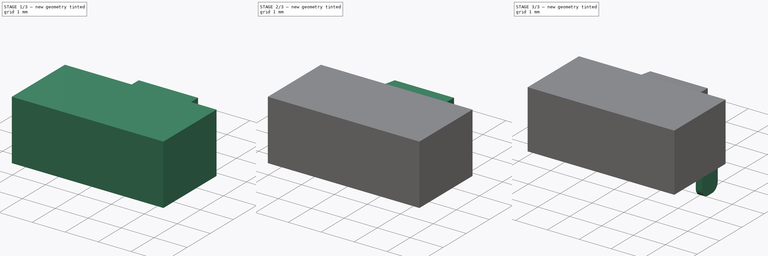
[diagram: build sequence overview — one tinted view per stage of 3, left to right]
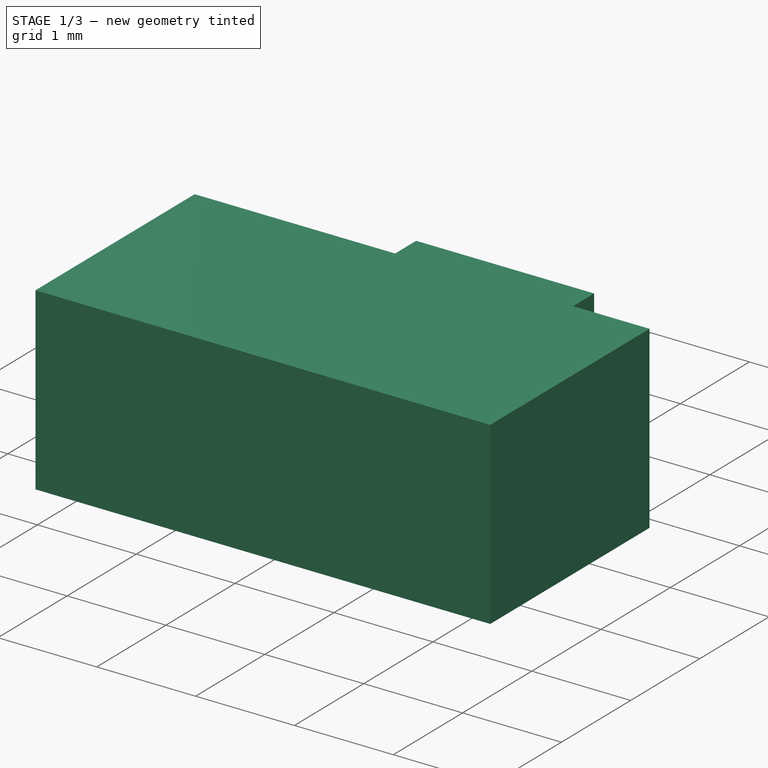
[diagram: stage 1 of 3 — iso view after this stage's code; geometry added in this stage tinted green]
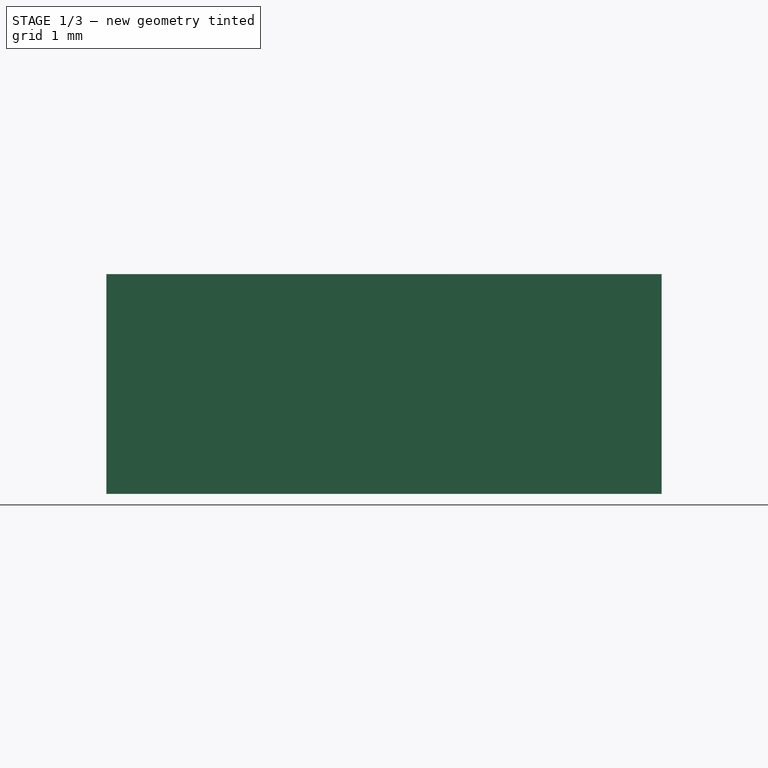
[diagram: stage 1 of 3 — front view after this stage's code; geometry added in this stage tinted green]
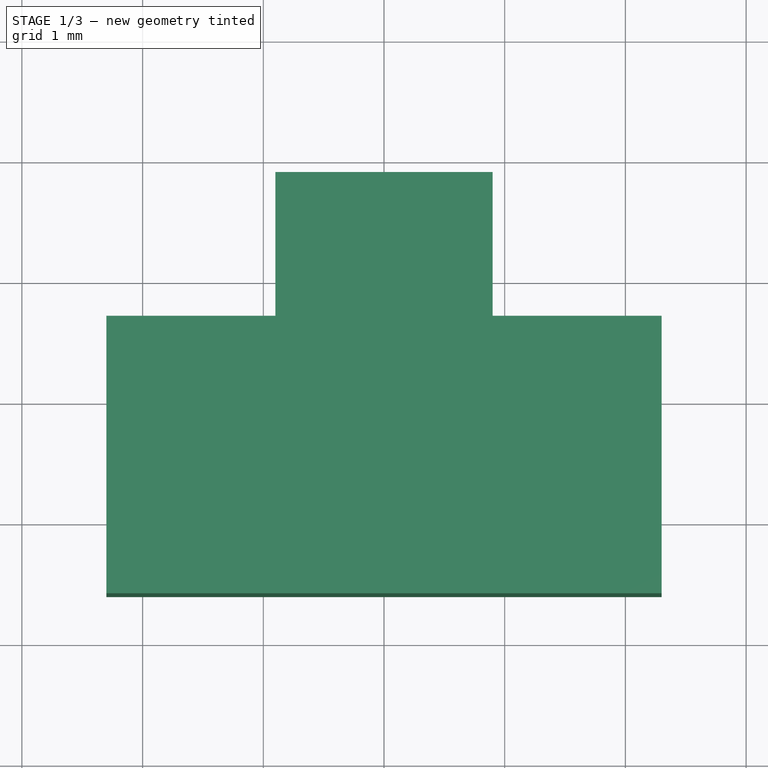
[diagram: stage 1 of 3 — top view after this stage's code; geometry added in this stage tinted green]
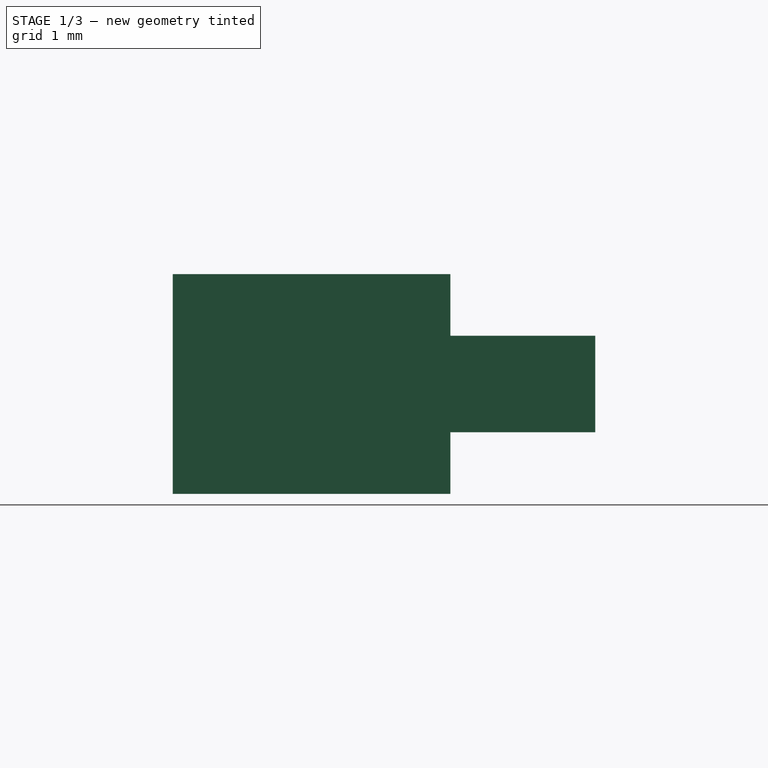
[diagram: stage 1 of 3 — right view after this stage's code; geometry added in this stage tinted green]
FCSTD DOCUMENT  (FreeCAD 0.18R16110 (Git))
Label: hyp_mapmode
License: All rights reserved
LicenseURL: http://en.wikipedia.org/wiki/All_rights_reserved
objects: Sketcher::SketchObject×3, PartDesign::Pad×3, PartDesign::Draft×1, PartDesign::Fillet×1, PartDesign::Body×1
note: 12 computed .brp shape members not serialized (recipe doc carries the construction recipe); baked Part::Feature solids carry a one-line shape summary decoded from their .brp

FEATURE [Sketcher::SketchObject] Sketch
  MapMode = 5
  Support = -> [XY_Plane]
  sketch-geometry (7):
    g0: LineSegment StartX=-2.3 StartY=0.7 StartZ=0 EndX=2.3 EndY=0.7 EndZ=0
    g1: LineSegment StartX=2.3 StartY=0.7 StartZ=0 EndX=2.3 EndY=-1.6 EndZ=0
    g2: LineSegment StartX=2.3 StartY=-1.6 StartZ=0 EndX=-2.3 EndY=-1.6 EndZ=0
    g3: LineSegment StartX=-2.3 StartY=-1.6 StartZ=0 EndX=-2.3 EndY=0.7 EndZ=0
    g4: LineSegment [constr] StartX=-2.3 StartY=0.7 StartZ=0 EndX=0 EndY=-0.45 EndZ=0
    g5: LineSegment [constr] StartX=0 StartY=-0.45 StartZ=0 EndX=2.3 EndY=0.7 EndZ=0
    g6: LineSegment [constr] StartX=0 StartY=-0.45 StartZ=0 EndX=-2.3 EndY=-1.6 EndZ=0
  constraints (19):
    c: Coincident(g0,g1)
    c: Coincident(g1,g2)
    c: Coincident(g2,g3)
    c: Coincident(g3,g0)
    c: Horizontal(g0)
    c: Horizontal(g2)
    c: Vertical(g1)
    c: Vertical(g3)
    c: DistanceX(g0,g0) = 4.6
    c: DistanceY(g3,g3) = 2.3
    c: Coincident(g4,g0)
    c: PointOnObject(g4,g-2)
    c: Coincident(g5,g4)
    c: Coincident(g5,g0)
    c: Coincident(g6,g4)
    c: Coincident(g6,g2)
    c: Equal(g6,g4)
    c: Equal(g4,g5)
    c: DistanceY(g2,g-1) = 1.6
FEATURE [PartDesign::Pad] Pad
  Length = 1.82
  Length2 = 100
  Profile = -> Sketch
  Type = 0
FEATURE [Sketcher::SketchObject] Sketch001
  ExternalGeometry = -> [Pad]
  MapMode = 5
  Placement = pos=(0,0.7,0) rot=(0,0.707107,0.707107;3.14159rad)
  Support = -> [Pad]
  sketch-geometry (9):
    g0: LineSegment StartX=-0.9 StartY=0.51 StartZ=0 EndX=0.9 EndY=0.51 EndZ=0
    g1: LineSegment StartX=0.9 StartY=0.51 StartZ=0 EndX=0.9 EndY=1.31 EndZ=0
    g2: LineSegment StartX=0.9 StartY=1.31 StartZ=0 EndX=-0.9 EndY=1.31 EndZ=0
    g3: LineSegment StartX=-0.9 StartY=1.31 StartZ=0 EndX=-0.9 EndY=0.51 EndZ=0
    g4: LineSegment [constr] StartX=-0.9 StartY=1.31 StartZ=0 EndX=0 EndY=0.91 EndZ=0
    g5: LineSegment [constr] StartX=0 StartY=0.91 StartZ=0 EndX=0.9 EndY=1.31 EndZ=0
    g6: LineSegment [constr] StartX=0 StartY=0.91 StartZ=0 EndX=-0.9 EndY=0.51 EndZ=0
    g7: LineSegment [constr] StartX=-2.3 StartY=1.82 StartZ=0 EndX=0 EndY=0.91 EndZ=0
    g8: LineSegment [constr] StartX=0 StartY=0.91 StartZ=0 EndX=-2.3 EndY=0 EndZ=0
  constraints (23):
    c: Coincident(g0,g1)
    c: Coincident(g1,g2)
    c: Coincident(g2,g3)
    c: Coincident(g3,g0)
    c: Horizontal(g0)
    c: Horizontal(g2)
    c: Vertical(g1)
    c: Vertical(g3)
    c: Coincident(g4,g2)
    c: PointOnObject(g4,g-2)
    c: Coincident(g5,g4)
    c: Coincident(g5,g1)
    c: Coincident(g6,g4)
    c: Coincident(g6,g0)
    c: Equal(g5,g4)
    c: Equal(g4,g6)
    c: DistanceY(g3,g3) = 0.8
    c: DistanceX(g2,g2) = 1.8
    c: Coincident(g7,g-3)
    c: Coincident(g7,g4)
    c: Coincident(g8,g4)
    c: Coincident(g8,g-3)
    c: Equal(g8,g7)
FEATURE [PartDesign::Pad] Pad001
  BaseFeature = -> Pad
  Length = 1.2
  Length2 = 100
  Profile = -> Sketch001
  Type = 0
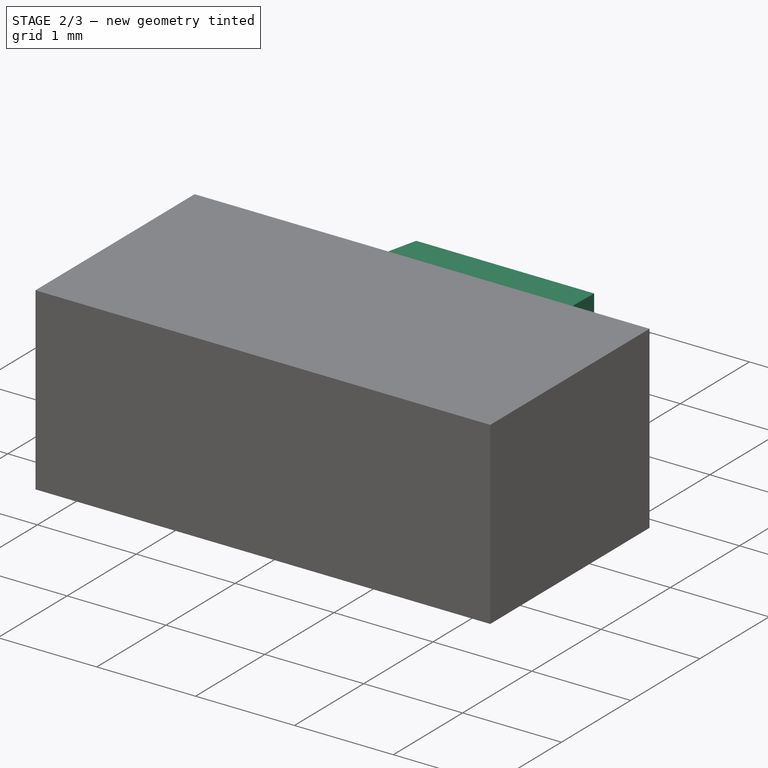
[diagram: stage 2 of 3 — iso view after this stage's code; geometry added in this stage tinted green]
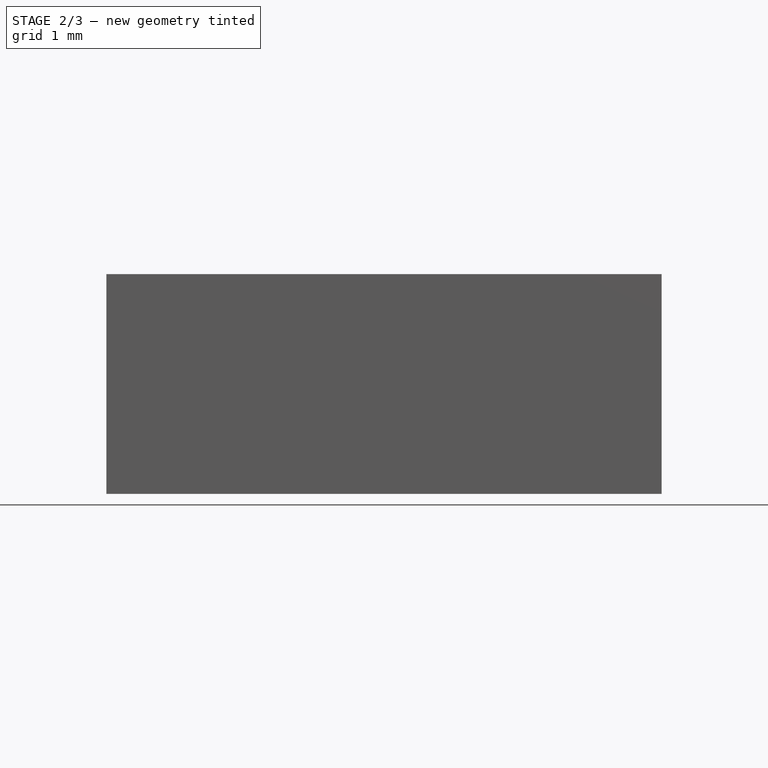
[diagram: stage 2 of 3 — front view after this stage's code; geometry added in this stage tinted green]
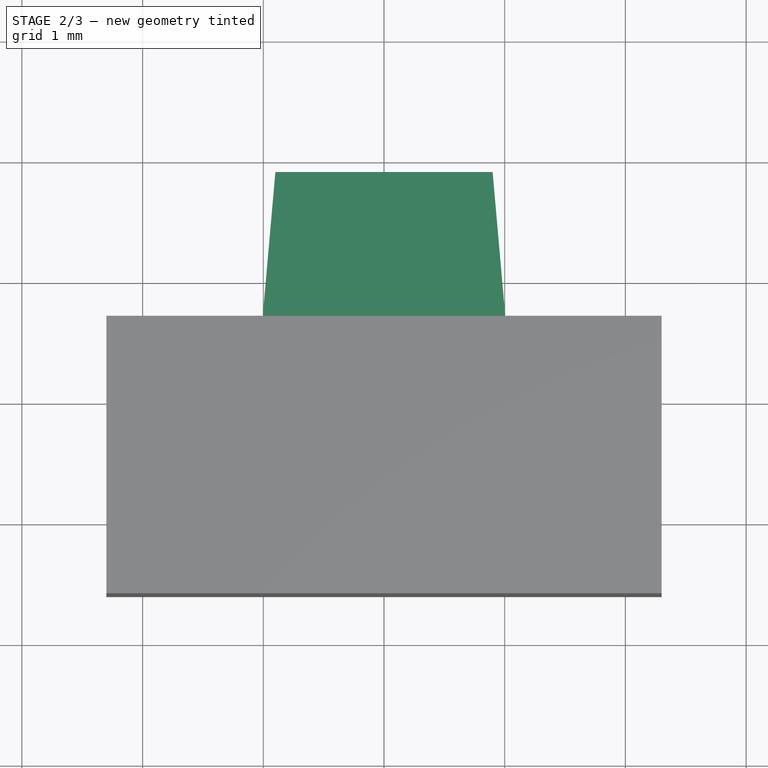
[diagram: stage 2 of 3 — top view after this stage's code; geometry added in this stage tinted green]
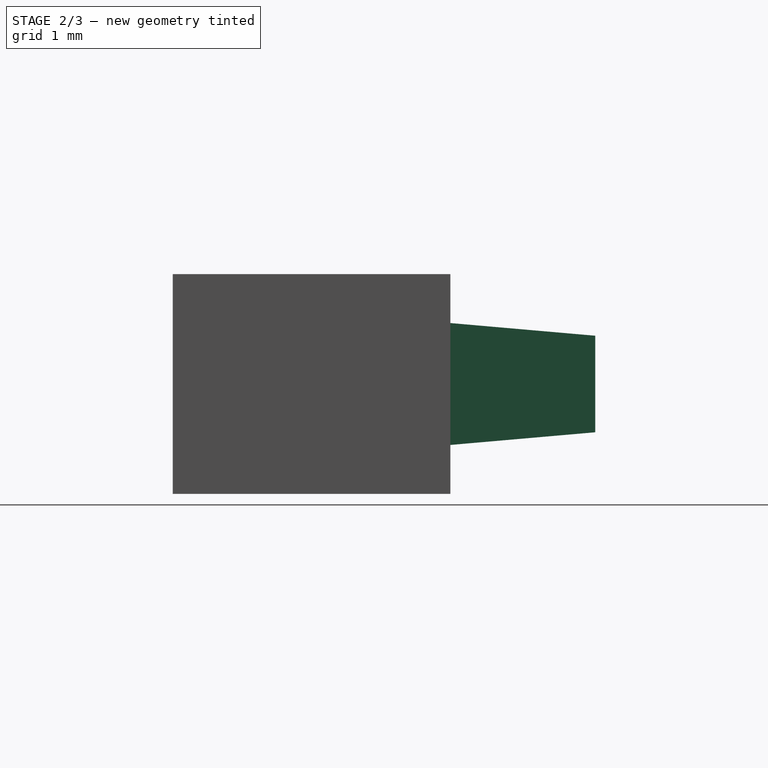
[diagram: stage 2 of 3 — right view after this stage's code; geometry added in this stage tinted green]
FEATURE [PartDesign::Draft] Draft
  Angle = 5
  Base = -> Pad001 [Face9,Face8,Face7,Face6]
  BaseFeature = -> Pad001
  NeutralPlane = -> Pad001 [Face11]
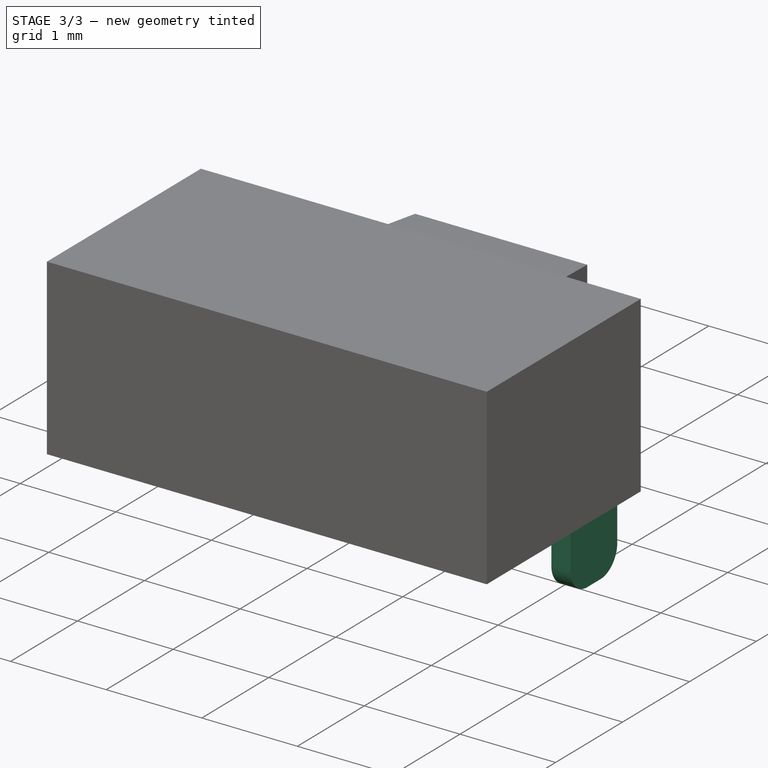
[diagram: stage 3 of 3 — iso view after this stage's code; geometry added in this stage tinted green]
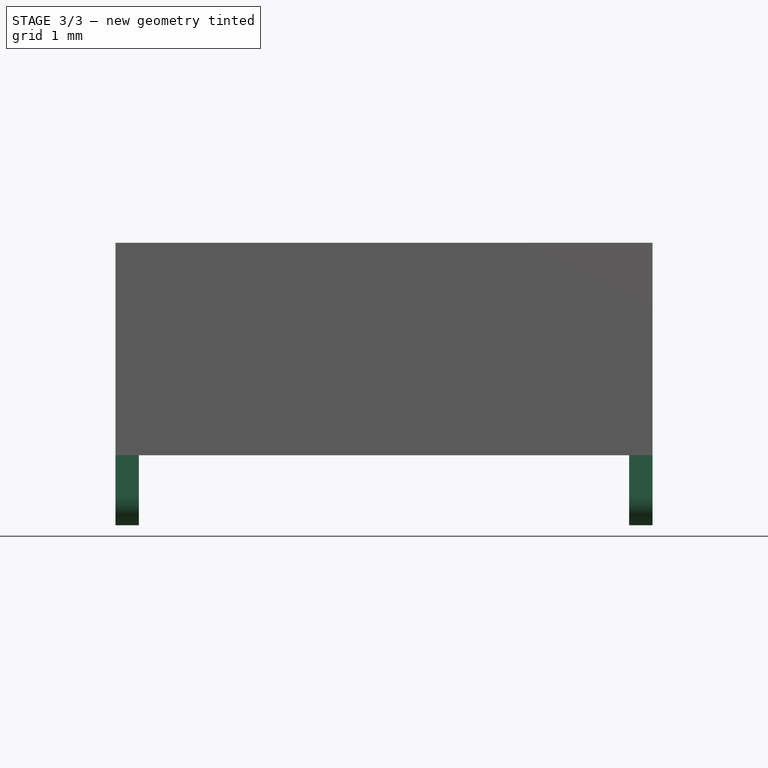
[diagram: stage 3 of 3 — front view after this stage's code; geometry added in this stage tinted green]
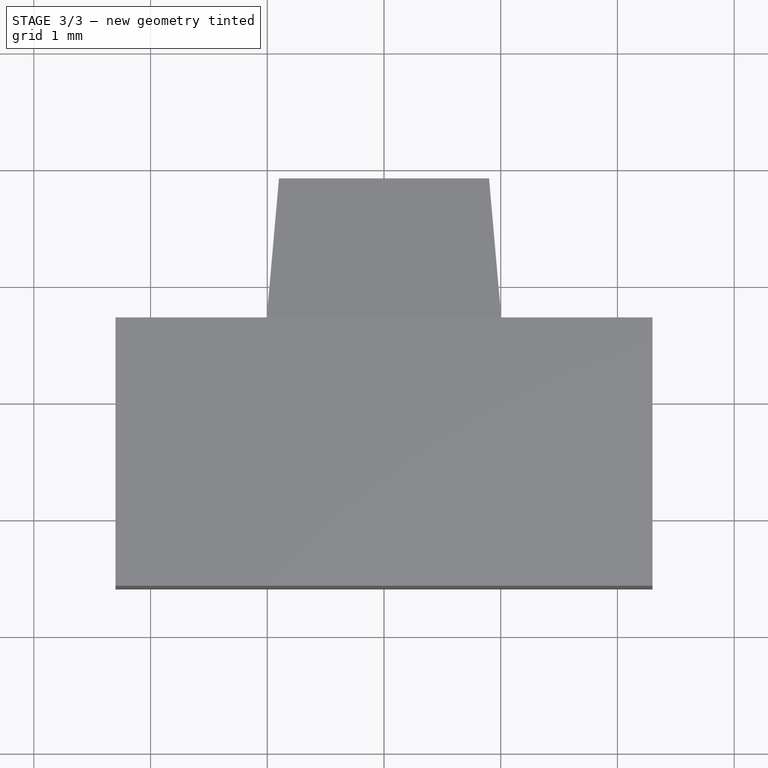
[diagram: stage 3 of 3 — top view after this stage's code; geometry added in this stage tinted green]
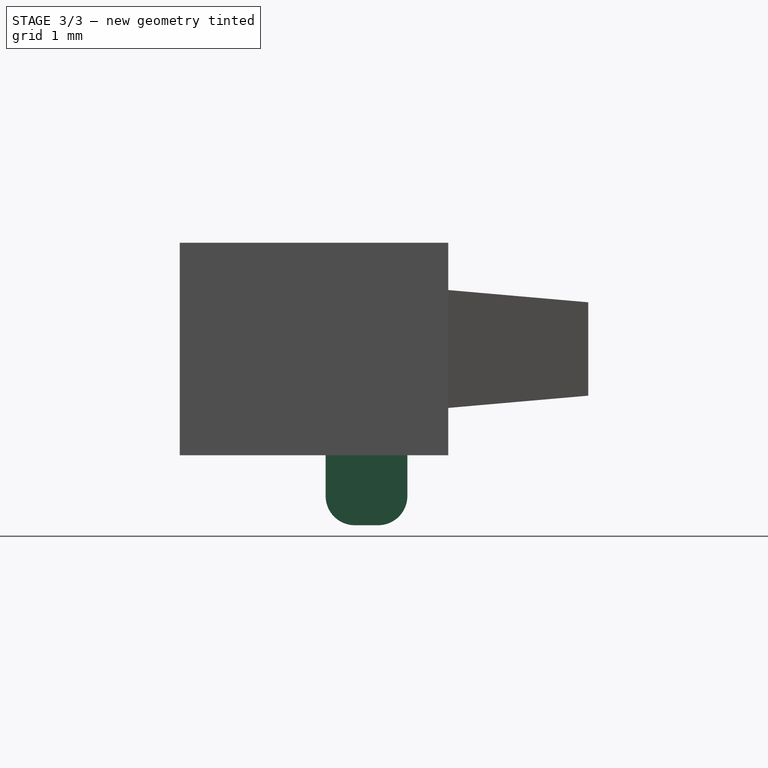
[diagram: stage 3 of 3 — right view after this stage's code; geometry added in this stage tinted green]
FEATURE [Sketcher::SketchObject] Sketch002
  ExternalGeometry = -> [Draft]
  MapMode = 5
  Placement = pos=(0,0,0) rot=(1,0,0;3.14159rad)
  Support = -> [Draft]
  sketch-geometry (11):
    g0: LineSegment StartX=-2.3 StartY=-0.35 StartZ=0 EndX=-2.1 EndY=-0.35 EndZ=0
    g1: LineSegment StartX=-2.1 StartY=-0.35 StartZ=0 EndX=-2.1 EndY=0.35 EndZ=0
    g2: LineSegment StartX=-2.1 StartY=0.35 StartZ=0 EndX=-2.3 EndY=0.35 EndZ=0
    g3: LineSegment StartX=-2.3 StartY=0.35 StartZ=0 EndX=-2.3 EndY=-0.35 EndZ=0
    g4: LineSegment StartX=2.3 StartY=0.35 StartZ=0 EndX=2.1 EndY=0.35 EndZ=0
    g5: LineSegment StartX=2.1 StartY=0.35 StartZ=0 EndX=2.1 EndY=-0.35 EndZ=0
    g6: LineSegment StartX=2.1 StartY=-0.35 StartZ=0 EndX=2.3 EndY=-0.35 EndZ=0
    g7: LineSegment StartX=2.3 StartY=-0.35 StartZ=0 EndX=2.3 EndY=0.35 EndZ=0
    g8: LineSegment [constr] StartX=-2.1 StartY=0.35 StartZ=0 EndX=2.1 EndY=0.35 EndZ=0
    g9: LineSegment [constr] StartX=-2.1 StartY=0.35 StartZ=0 EndX=0 EndY=0 EndZ=0
    g10: LineSegment [constr] StartX=0 StartY=0 StartZ=0 EndX=-2.1 EndY=-0.35 EndZ=0
  constraints (30):
    c: Coincident(g0,g1)
    c: Coincident(g1,g2)
    c: Coincident(g2,g3)
    c: Coincident(g3,g0)
    c: Horizontal(g0)
    c: Horizontal(g2)
    c: Vertical(g1)
    c: Vertical(g3)
    c: PointOnObject(g0,g-4)
    c: Coincident(g4,g5)
    c: Coincident(g5,g6)
    c: Coincident(g6,g7)
    c: Coincident(g7,g4)
    c: Horizontal(g4)
    c: Horizontal(g6)
    c: Vertical(g5)
    c: Vertical(g7)
    c: PointOnObject(g4,g-3)
    c: DistanceX(g2,g2) = 0.2
    c: Equal(g4,g2)
    c: Equal(g5,g1)
    c: Coincident(g8,g1)
    c: Coincident(g8,g4)
    c: Horizontal(g8)
    c: DistanceY(g3,g3) = 0.7
    c: Coincident(g9,g1)
    c: Coincident(g9,g-1)
    c: Coincident(g10,g-1)
    c: Coincident(g10,g0)
    c: Equal(g9,g10)
FEATURE [PartDesign::Pad] Pad002
  BaseFeature = -> Draft
  Length = 0.6
  Length2 = 100
  Profile = -> Sketch002
  Refine = true
  Type = 0
FEATURE [PartDesign::Fillet] Fillet
  Base = -> Pad002 [Edge35,Edge39,Edge42,Edge46]
  BaseFeature = -> Pad002
  Radius = 0.25
FEATURE [PartDesign::Body] Body
  Group = -> [Sketch,Pad,Sketch001,Pad001,Draft,Sketch002,Pad002,Fillet]
  Origin = -> Origin
  Tip = -> Fillet
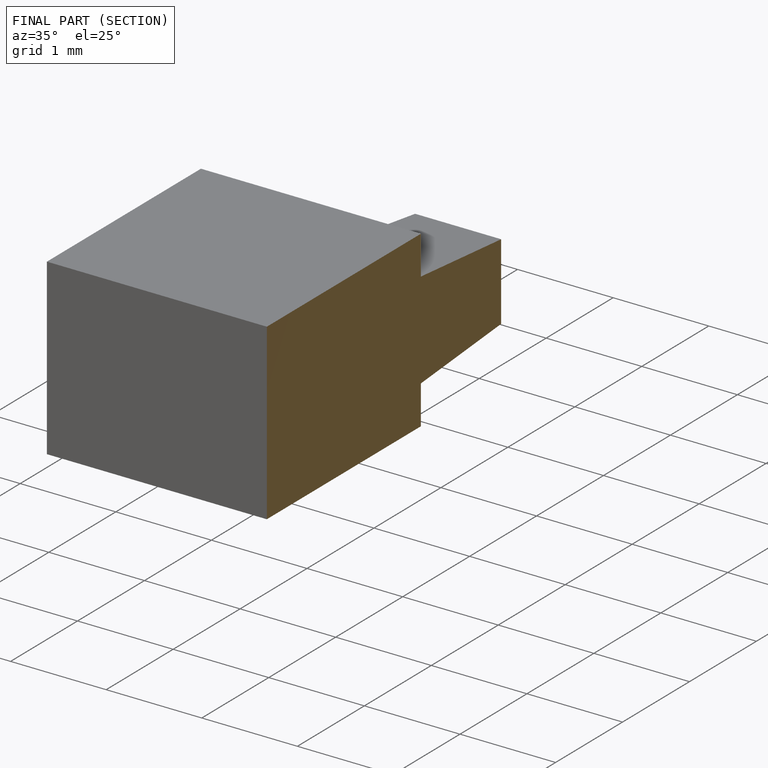
[diagram: finished part — half-section view (interior)]
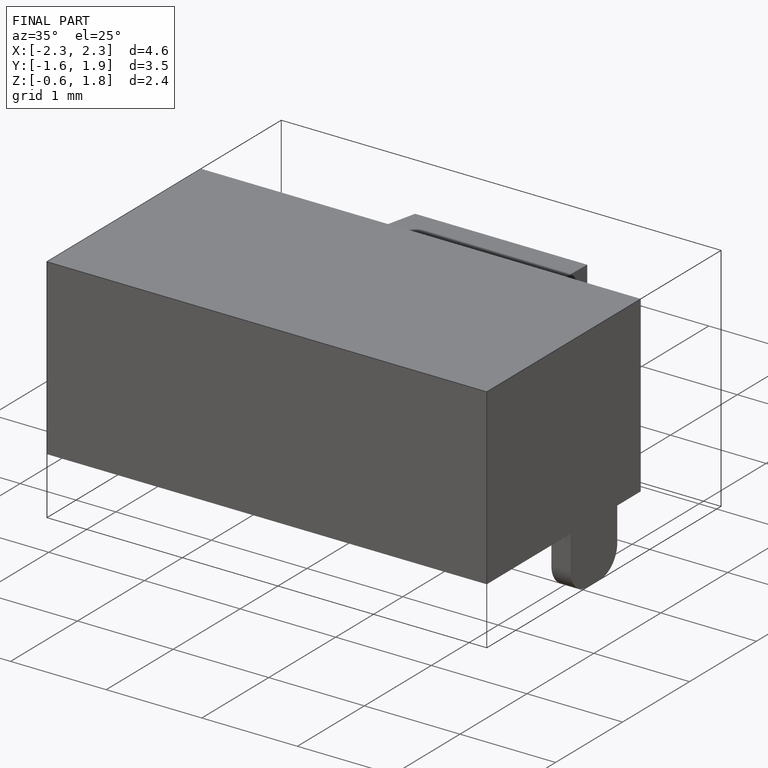
[diagram: finished part — iso view with bounding-box wireframe]
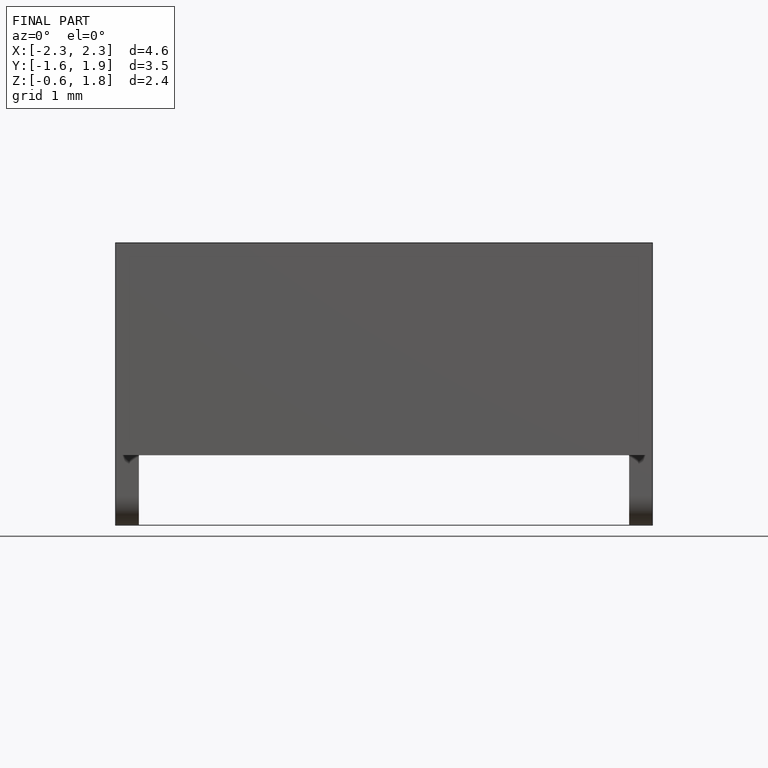
[diagram: finished part — front view with bounding-box wireframe]
